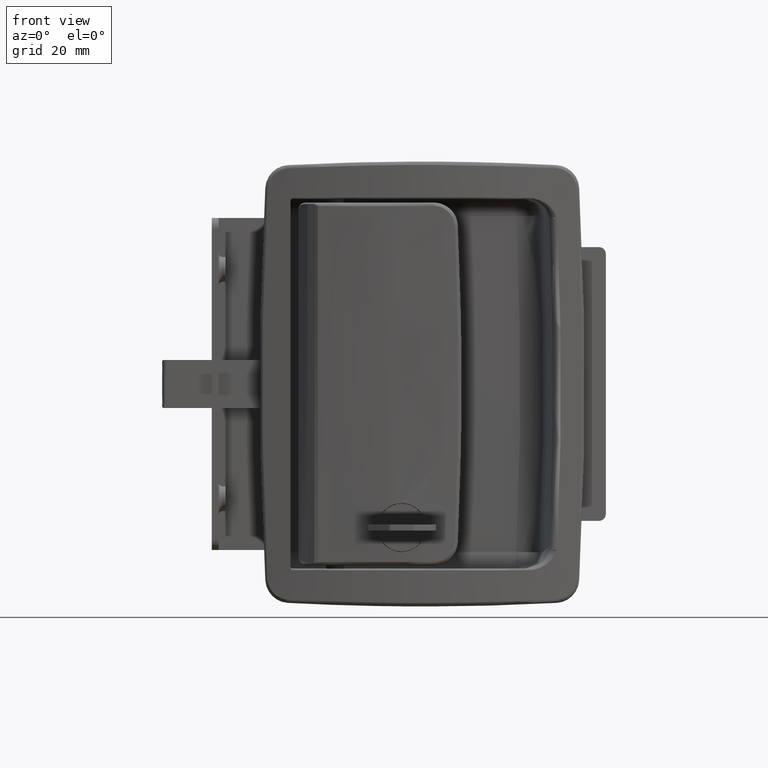
[diagram: clean part render]
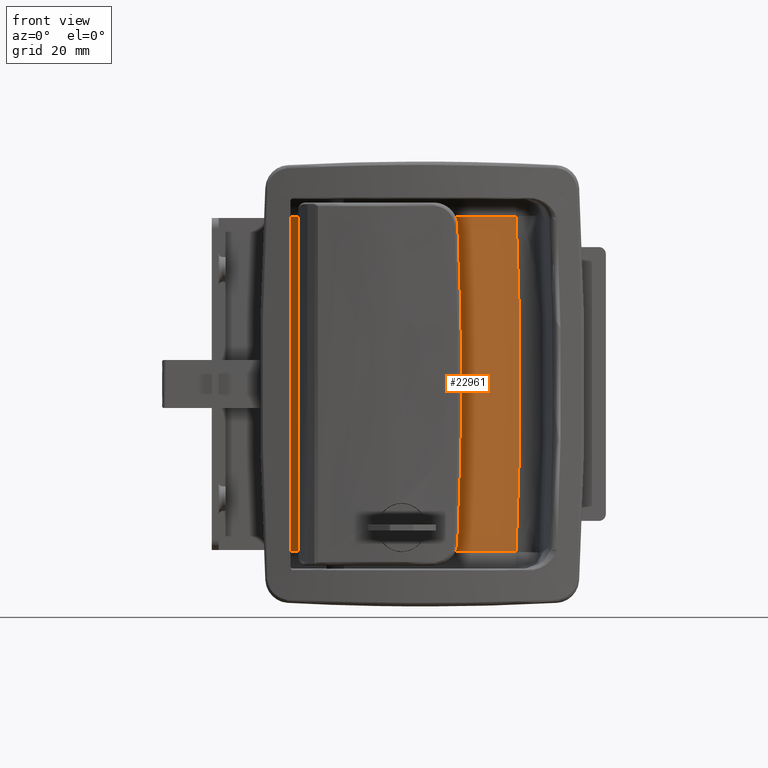
[diagram: same view with one face highlighted and labeled with its STEP entity id]
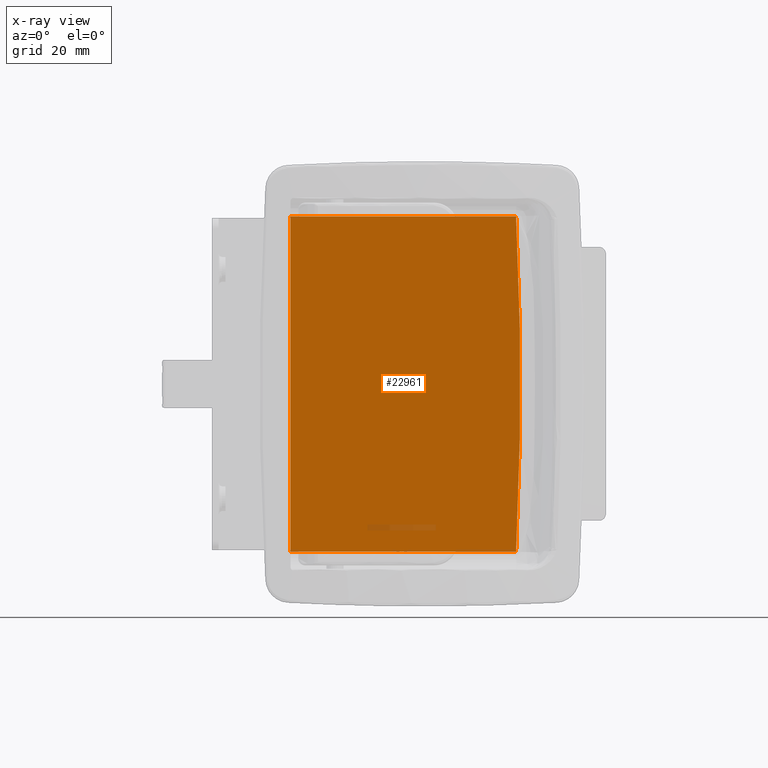
[diagram: x-ray of the same camera — body ghosted, the highlighted face saturated]
A machine part, front view. The second image highlights one B-rep face of the part: STEP entity #22961.
The next image is the same camera in x-ray: the body ghosted, the highlighted face saturated — about 1% of this face is hidden behind the body in this view.
In plain terms, the highlighted face is a freeform B-spline surface patch.
Its self-contained STEP definition (entity closure, byte-faithful):
#22316=CARTESIAN_POINT('',(74.937396195206702,10.799999999967840,-49.0));
#22317=VERTEX_POINT('',#22316);
#22371=CARTESIAN_POINT('',(23.446547614184549,10.799999999967820,-49.0));
#22372=VERTEX_POINT('',#22371);
#22391=CARTESIAN_POINT('',(23.446547614184549,10.799999999967820,-49.0));
#22392=CARTESIAN_POINT('',(74.937396195206702,10.799999999967840,-49.0));
#22393=QUASI_UNIFORM_CURVE('',1,(#22391,#22392),.UNSPECIFIED.,.F.,.U.);
#22394=EDGE_CURVE('',#22372,#22317,#22393,.T.);
#22457=CARTESIAN_POINT('',(20.553452385792951,10.799999999967840,-49.0));
#22458=VERTEX_POINT('',#22457);
#22473=CARTESIAN_POINT('',(20.553452385792951,10.799999999967840,-49.0));
#22474=CARTESIAN_POINT('',(21.517666028392551,10.799999999967840,-49.020853079203313));
#22475=CARTESIAN_POINT('',(22.482334720944589,10.799999999967870,-49.020853851728198));
#22476=CARTESIAN_POINT('',(23.446547614184549,10.799999999967820,-49.0));
#22477=B_SPLINE_CURVE_WITH_KNOTS('',3,(#22473,#22474,#22475,#22476),.UNSPECIFIED.,.F.,.U.,(4,4),(8.062306E-011,2.893324212644576),.UNSPECIFIED.);
#22478=EDGE_CURVE('',#22458,#22372,#22477,.T.);
#22497=CARTESIAN_POINT('',(8.999999999988742,10.799999999967840,-49.0));
#22498=VERTEX_POINT('',#22497);
#22516=CARTESIAN_POINT('',(8.999999999988742,10.799999999967840,-49.0));
#22517=CARTESIAN_POINT('',(20.553452385792951,10.799999999967840,-49.0));
#22518=QUASI_UNIFORM_CURVE('',1,(#22516,#22517),.UNSPECIFIED.,.F.,.U.);
#22519=EDGE_CURVE('',#22498,#22458,#22518,.T.);
#22664=CARTESIAN_POINT('',(74.937385148538198,10.799999999967840,49.000220918255401));
#22665=VERTEX_POINT('',#22664);
#22717=CARTESIAN_POINT('',(23.446547614184500,10.799999999967840,49.0));
#22718=VERTEX_POINT('',#22717);
#22731=CARTESIAN_POINT('',(74.937385148538198,10.799999999967840,49.000220918255401));
#22732=CARTESIAN_POINT('',(23.446547614184500,10.799999999967840,49.0));
#22733=QUASI_UNIFORM_CURVE('',1,(#22731,#22732),.UNSPECIFIED.,.F.,.U.);
#22734=EDGE_CURVE('',#22665,#22718,#22733,.T.);
#22803=CARTESIAN_POINT('',(20.553452385792951,10.799999999967840,49.0));
#22804=VERTEX_POINT('',#22803);
#22817=CARTESIAN_POINT('',(23.446547614184500,10.799999999967840,49.0));
#22818=CARTESIAN_POINT('',(22.482334708242210,10.799999999967829,49.020853851800851));
#22819=CARTESIAN_POINT('',(21.517666017569230,10.799999999967829,49.020853079320112));
#22820=CARTESIAN_POINT('',(20.553452385792951,10.799999999967840,49.0));
#22821=B_SPLINE_CURVE_WITH_KNOTS('',3,(#22817,#22818,#22819,#22820),.UNSPECIFIED.,.F.,.U.,(4,4),(8.052448E-011,2.893324212644485),.UNSPECIFIED.);
#22822=EDGE_CURVE('',#22718,#22804,#22821,.T.);
#22849=CARTESIAN_POINT('',(8.999999999988742,10.799999999967840,49.0));
#22850=VERTEX_POINT('',#22849);
#22862=CARTESIAN_POINT('',(20.553452385792951,10.799999999967840,49.0));
#22863=CARTESIAN_POINT('',(8.999999999988742,10.799999999967840,49.0));
#22864=QUASI_UNIFORM_CURVE('',1,(#22862,#22863),.UNSPECIFIED.,.F.,.U.);
#22865=EDGE_CURVE('',#22804,#22850,#22864,.T.);
#22888=CARTESIAN_POINT('',(74.937385148538198,10.799999999967840,49.000220918255401));
#22889=CARTESIAN_POINT('',(77.387558244344063,10.799999999967838,0.000110735312066));
#22890=CARTESIAN_POINT('',(74.937396195206702,10.799999999967840,-49.0));
#22898=(BOUNDED_CURVE()B_SPLINE_CURVE(2,(#22888,#22889,#22890),.UNSPECIFIED.,.F.,.U.)CURVE()GEOMETRIC_REPRESENTATION_ITEM()QUASI_UNIFORM_CURVE()RATIONAL_B_SPLINE_CURVE((1.0,0.998752174134329,1.0))REPRESENTATION_ITEM(''));
#22899=EDGE_CURVE('',#22665,#22317,#22898,.T.);
#22942=CARTESIAN_POINT('',(5.645272733877000,10.799999999967840,53.912303222217488));
#22943=CARTESIAN_POINT('',(79.516438702836552,10.799999999967840,53.912303222217488));
#22944=CARTESIAN_POINT('',(5.645272733877000,10.799999999967840,-53.912304975154790));
#22945=CARTESIAN_POINT('',(79.516438702836552,10.799999999967840,-53.912304975154790));
#22946=B_SPLINE_SURFACE_WITH_KNOTS('',1,1,((#22942,#22944),(#22943,#22945)),.UNSPECIFIED.,.F.,.F.,.U.,(2,2),(2,2),(0.0,73.871165968959559),(0.0,107.824608197372300),.UNSPECIFIED.);
#22947=CARTESIAN_POINT('',(8.999999999988742,10.799999999967840,49.0));
#22948=CARTESIAN_POINT('',(8.999999999988742,10.799999999967840,-49.0));
#22949=QUASI_UNIFORM_CURVE('',1,(#22947,#22948),.UNSPECIFIED.,.F.,.U.);
#22950=EDGE_CURVE('',#22850,#22498,#22949,.T.);
#22951=ORIENTED_EDGE('',*,*,#22950,.T.);
#22952=ORIENTED_EDGE('',*,*,#22519,.T.);
#22953=ORIENTED_EDGE('',*,*,#22478,.T.);
#22954=ORIENTED_EDGE('',*,*,#22394,.T.);
#22955=ORIENTED_EDGE('',*,*,#22899,.F.);
#22956=ORIENTED_EDGE('',*,*,#22734,.T.);
#22957=ORIENTED_EDGE('',*,*,#22822,.T.);
#22958=ORIENTED_EDGE('',*,*,#22865,.T.);
#22959=EDGE_LOOP('',(#22951,#22952,#22953,#22954,#22955,#22956,#22957,#22958));
#22960=FACE_OUTER_BOUND('',#22959,.T.);
#22961=ADVANCED_FACE('',(#22960),#22946,.F.);